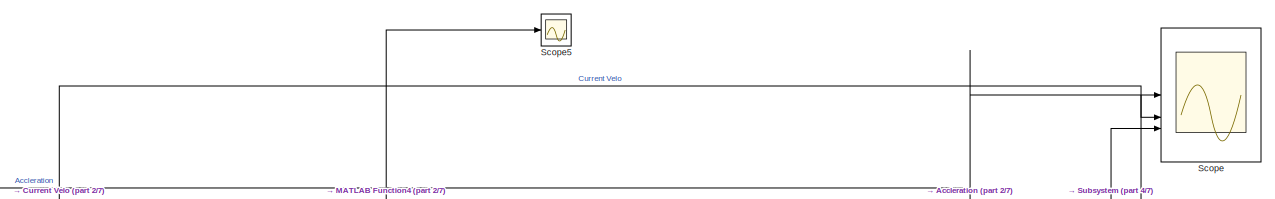
[diagram: root canvas - part 1/7, top right region]
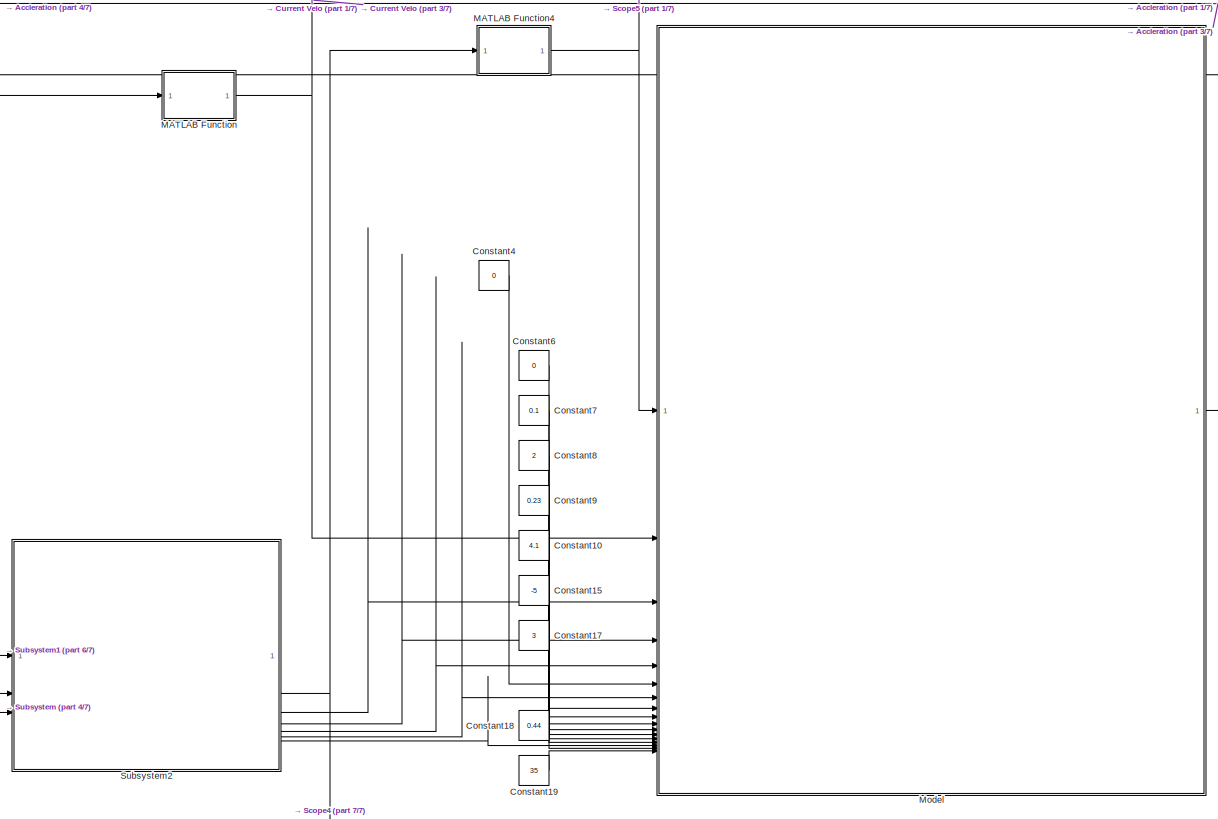
[diagram: root canvas - part 2/7, middle right region]
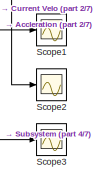
[diagram: root canvas - part 3/7, top right region]
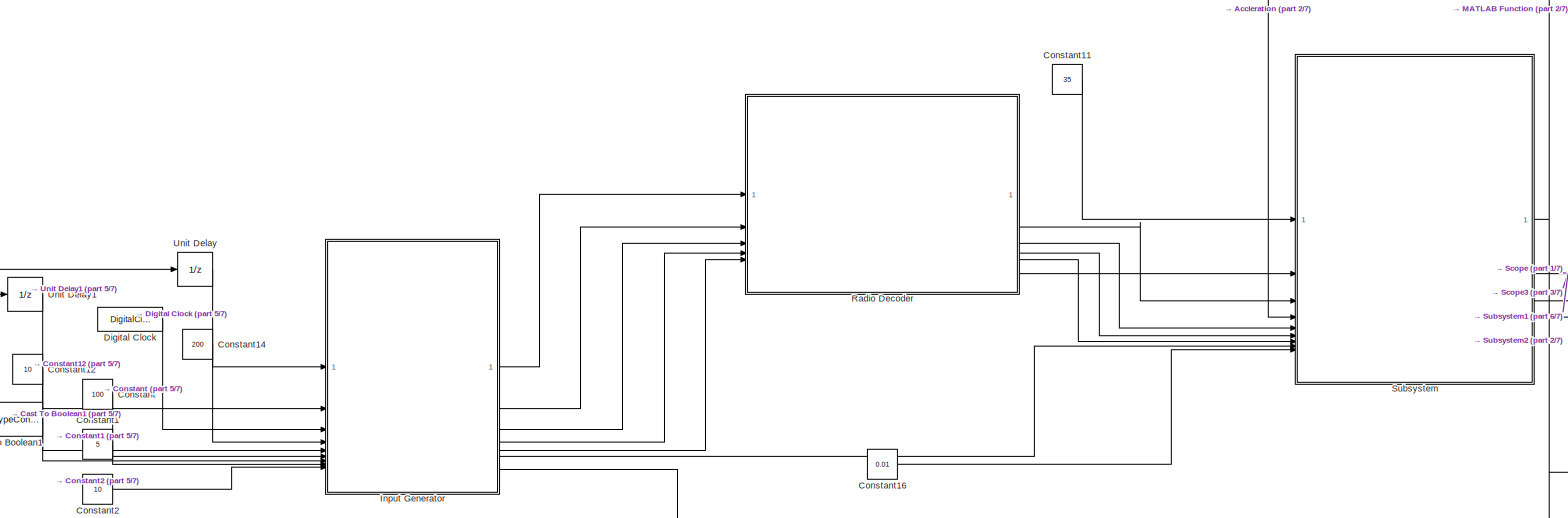
[diagram: root canvas - part 4/7, middle left region]
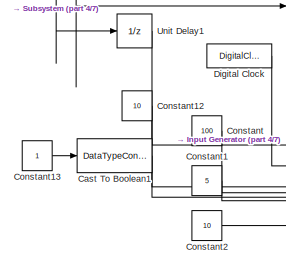
[diagram: root canvas - part 5/7, middle left region]
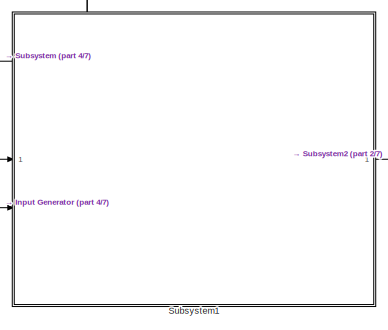
[diagram: root canvas - part 6/7, bottom center region]
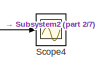
[diagram: root canvas - part 7/7, bottom right region]
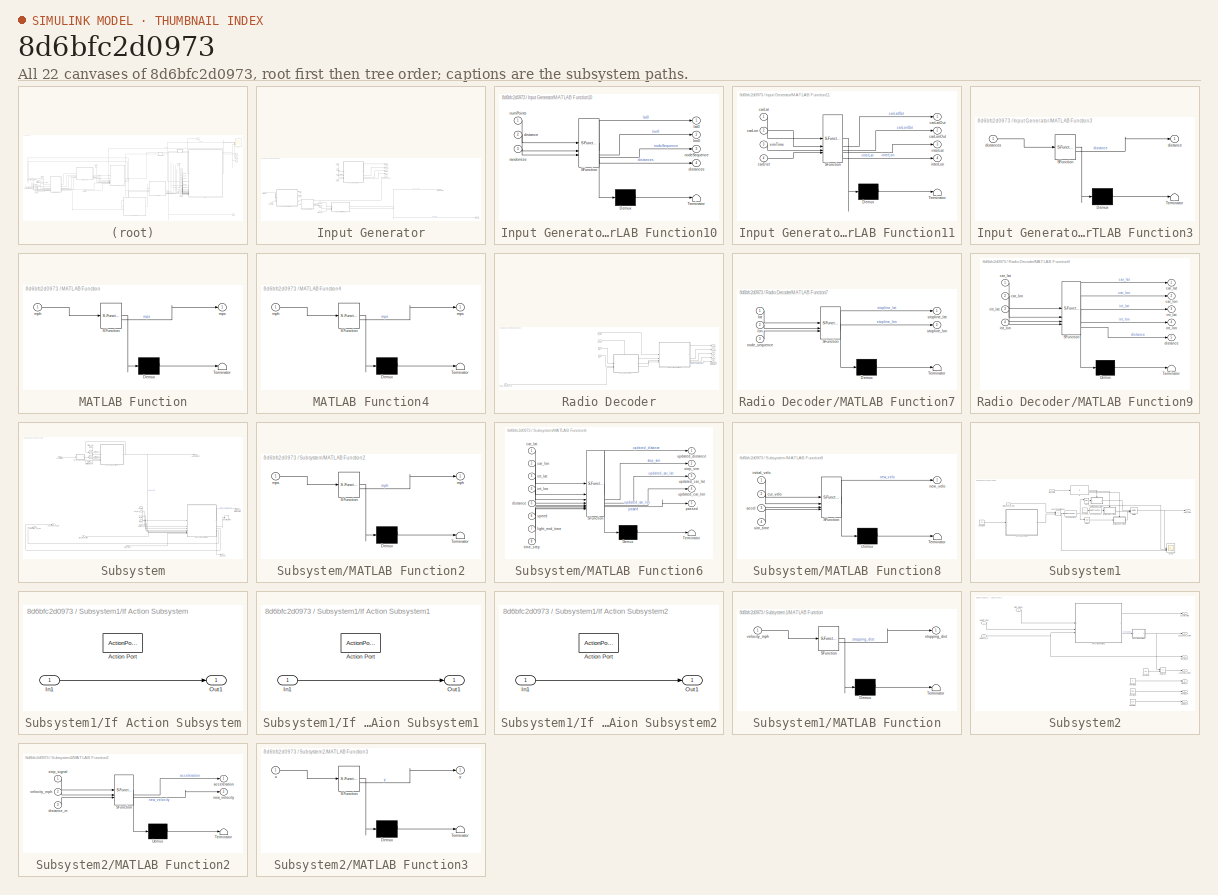
[diagram: thumbnail index - all 22 canvases of the model, root first then tree order]
MODEL slx_8d6bfc2d0973
KIND model
CONFIG AbsTol = auto
CONFIG EnableMultiTasking = off
CONFIG FixedStep = auto
CONFIG MaxStep = auto
CONFIG MinStep = auto
CONFIG RelTol = 1e-3
CONFIG SampleTimeConstraint = Unconstrained
CONFIG SolverName = VariableStepAuto
CONFIG StartTime = 0.0
CONFIG StopTime = 5
BLOCK [DataTypeConversion] Cast To Boolean1
  OutDataTypeStr = boolean
  RndMeth = Floor
  SaturateOnIntegerOverflow = off
BLOCK [Constant] Constant
  Value = 100
BLOCK [Constant] Constant1
  Value = 5
BLOCK [Constant] Constant10
  Value = 4.1
BLOCK [Constant] Constant11
  Value = 35
BLOCK [Constant] Constant12
  Value = 10
BLOCK [Constant] Constant13
BLOCK [Constant] Constant14
  Value = 200
BLOCK [Constant] Constant15
  Value = -5
BLOCK [Constant] Constant16
  Value = 0.01
BLOCK [Constant] Constant17
  Value = 3
BLOCK [Constant] Constant18
  Value = 0.44
BLOCK [Constant] Constant19
  Value = 35
BLOCK [Constant] Constant2
  Value = 10
BLOCK [Constant] Constant4
  Value = 0
BLOCK [Constant] Constant6
  Value = 0
BLOCK [Constant] Constant7
  Value = 0.1
BLOCK [Constant] Constant8
  Value = 2
BLOCK [Constant] Constant9
  Value = 0.23
BLOCK [DigitalClock] Digital Clock
  SampleTime = 0.01
BLOCK [SubSystem] Input Generator
BLOCK [SubSystem] Input Generator/MATLAB Function10
  ErrorFcn = Stateflow.Translate.translate
  PermitHierarchicalResolution = ExplicitOnly
  SFBlockType = MATLAB Function
  TreatAsAtomicUnit = on
BLOCK [Demux] Input Generator/MATLAB Function10/ Demux 
  Outputs = 1
BLOCK [S-Function] Input Generator/MATLAB Function10/ SFunction 
  EnableBusSupport = on
  FunctionName = sf_sfun
  PortCounts = [3 5]
  SFcnIsStateOwnerBlock = off
  SFunctionDeploymentMode = off
  Tag = Stateflow S-Function 12
BLOCK [Terminator] Input Generator/MATLAB Function10/ Terminator 
BLOCK [Inport] Input Generator/MATLAB Function10/distance
  Port = 2
BLOCK [Outport] Input Generator/MATLAB Function10/distances
  Port = 4
BLOCK [Outport] Input Generator/MATLAB Function10/lat0
BLOCK [Outport] Input Generator/MATLAB Function10/lon0
  Port = 2
BLOCK [Outport] Input Generator/MATLAB Function10/nodeSequence
  Port = 3
BLOCK [Inport] Input Generator/MATLAB Function10/numPoints
BLOCK [Inport] Input Generator/MATLAB Function10/randomize
  Port = 3
BLOCK [SubSystem] Input Generator/MATLAB Function11
  ErrorFcn = Stateflow.Translate.translate
  PermitHierarchicalResolution = ExplicitOnly
  SFBlockType = MATLAB Function
  TreatAsAtomicUnit = on
BLOCK [Demux] Input Generator/MATLAB Function11/ Demux 
  Outputs = 1
BLOCK [S-Function] Input Generator/MATLAB Function11/ SFunction 
  EnableBusSupport = on
  FunctionName = sf_sfun
  PortCounts = [4 5]
  SFcnIsStateOwnerBlock = off
  SFunctionDeploymentMode = off
  Tag = Stateflow S-Function 13
BLOCK [Terminator] Input Generator/MATLAB Function11/ Terminator 
BLOCK [Inport] Input Generator/MATLAB Function11/carDist
  Port = 4
BLOCK [Inport] Input Generator/MATLAB Function11/carLat
BLOCK [Outport] Input Generator/MATLAB Function11/carLatOut
BLOCK [Inport] Input Generator/MATLAB Function11/carLon
  Port = 2
BLOCK [Outport] Input Generator/MATLAB Function11/carLonOut
  Port = 2
BLOCK [Outport] Input Generator/MATLAB Function11/interLat
  Port = 3
BLOCK [Outport] Input Generator/MATLAB Function11/interLon
  Port = 4
BLOCK [Inport] Input Generator/MATLAB Function11/simTime
  Port = 3
BLOCK [SubSystem] Input Generator/MATLAB Function3
  ErrorFcn = Stateflow.Translate.translate
  PermitHierarchicalResolution = ExplicitOnly
  SFBlockType = MATLAB Function
  TreatAsAtomicUnit = on
BLOCK [Demux] Input Generator/MATLAB Function3/ Demux 
  Outputs = 1
BLOCK [S-Function] Input Generator/MATLAB Function3/ SFunction 
  EnableBusSupport = on
  FunctionName = sf_sfun
  PortCounts = [1 2]
  SFcnIsStateOwnerBlock = off
  SFunctionDeploymentMode = off
  Tag = Stateflow S-Function 6
BLOCK [Terminator] Input Generator/MATLAB Function3/ Terminator 
BLOCK [Outport] Input Generator/MATLAB Function3/distance
BLOCK [Inport] Input Generator/MATLAB Function3/distances
BLOCK [SubSystem] Input Generator/Subsystem Reference
  ReferencedSubsystem = traffic_light_sim_ryg
BLOCK [Inport] Input Generator/carDist
  Port = 4
BLOCK [Inport] Input Generator/carLat
BLOCK [Outport] Input Generator/carLatOut
BLOCK [Inport] Input Generator/carLon
  Port = 2
BLOCK [Outport] Input Generator/carLonOut
  Port = 2
BLOCK [Inport] Input Generator/distance
  Port = 5
BLOCK [Outport] Input Generator/distance1
  Port = 9
BLOCK [Inport] Input Generator/green_sec
  Port = 9
BLOCK [Outport] Input Generator/interLat
  Port = 3
BLOCK [Outport] Input Generator/interLon
  Port = 4
BLOCK [Outport] Input Generator/lat0
  Port = 7
BLOCK [Outport] Input Generator/light_end_time
  Port = 6
BLOCK [Outport] Input Generator/light_state
  Port = 10
BLOCK [Outport] Input Generator/lon0
  Port = 8
BLOCK [Outport] Input Generator/nodeSequence
  Port = 5
BLOCK [Inport] Input Generator/randomize
  Port = 7
BLOCK [Inport] Input Generator/red_sec
  Port = 6
BLOCK [Inport] Input Generator/simTime
  Port = 3
BLOCK [Inport] Input Generator/yellow_sec
  Port = 8
BLOCK [SubSystem] MATLAB Function
  ErrorFcn = Stateflow.Translate.translate
  PermitHierarchicalResolution = ExplicitOnly
  SFBlockType = MATLAB Function
  TreatAsAtomicUnit = on
BLOCK [Demux] MATLAB Function/ Demux 
  Outputs = 1
BLOCK [S-Function] MATLAB Function/ SFunction 
  EnableBusSupport = on
  FunctionName = sf_sfun
  PortCounts = [1 2]
  SFcnIsStateOwnerBlock = off
  SFunctionDeploymentMode = off
  Tag = Stateflow S-Function 3
BLOCK [Terminator] MATLAB Function/ Terminator 
BLOCK [Inport] MATLAB Function/mph
BLOCK [Outport] MATLAB Function/mps
BLOCK [SubSystem] MATLAB Function4
  ErrorFcn = Stateflow.Translate.translate
  PermitHierarchicalResolution = ExplicitOnly
  SFBlockType = MATLAB Function
  TreatAsAtomicUnit = on
BLOCK [Demux] MATLAB Function4/ Demux 
  Outputs = 1
BLOCK [S-Function] MATLAB Function4/ SFunction 
  EnableBusSupport = on
  FunctionName = sf_sfun
  PortCounts = [1 2]
  SFcnIsStateOwnerBlock = off
  SFunctionDeploymentMode = off
  Tag = Stateflow S-Function 8
BLOCK [Terminator] MATLAB Function4/ Terminator 
BLOCK [Inport] MATLAB Function4/mph
BLOCK [Outport] MATLAB Function4/mps
BLOCK [ModelReference] Model
  ModelNameDialog = ACCMPC.slx
  ModelReferenceVersion = 1.21
BLOCK [SubSystem] Radio Decoder
BLOCK [Outport] Radio Decoder/Distance to intersetion
  Port = 5
BLOCK [SubSystem] Radio Decoder/MATLAB Function7
  ErrorFcn = Stateflow.Translate.translate
  PermitHierarchicalResolution = ExplicitOnly
  SFBlockType = MATLAB Function
  TreatAsAtomicUnit = on
BLOCK [Demux] Radio Decoder/MATLAB Function7/ Demux 
  Outputs = 1
BLOCK [S-Function] Radio Decoder/MATLAB Function7/ SFunction 
  EnableBusSupport = on
  FunctionName = sf_sfun
  PortCounts = [3 3]
  SFcnIsStateOwnerBlock = off
  SFunctionDeploymentMode = off
  Tag = Stateflow S-Function 5
BLOCK [Terminator] Radio Decoder/MATLAB Function7/ Terminator 
BLOCK [Inport] Radio Decoder/MATLAB Function7/lat
BLOCK [Inport] Radio Decoder/MATLAB Function7/lon
  Port = 2
BLOCK [Inport] Radio Decoder/MATLAB Function7/node_sequence
  Port = 3
BLOCK [Outport] Radio Decoder/MATLAB Function7/stopline_lat
BLOCK [Outport] Radio Decoder/MATLAB Function7/stopline_lon
  Port = 2
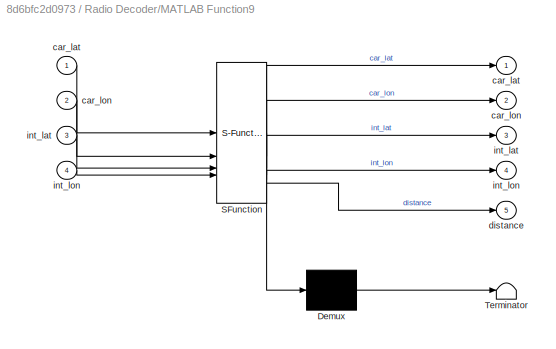
BLOCK [SubSystem] Radio Decoder/MATLAB Function9
  ErrorFcn = Stateflow.Translate.translate
  PermitHierarchicalResolution = ExplicitOnly
  SFBlockType = MATLAB Function
  TreatAsAtomicUnit = on
BLOCK [Demux] Radio Decoder/MATLAB Function9/ Demux 
  Outputs = 1
BLOCK [S-Function] Radio Decoder/MATLAB Function9/ SFunction 
  EnableBusSupport = on
  FunctionName = sf_sfun
  PortCounts = [4 6]
  SFcnIsStateOwnerBlock = off
  SFunctionDeploymentMode = off
  Tag = Stateflow S-Function 11
BLOCK [Terminator] Radio Decoder/MATLAB Function9/ Terminator 
BLOCK [Outport] Radio Decoder/MATLAB Function9/car_lat
BLOCK [Inport] Radio Decoder/MATLAB Function9/car_lat 
BLOCK [Outport] Radio Decoder/MATLAB Function9/car_lon
  Port = 2
BLOCK [Inport] Radio Decoder/MATLAB Function9/car_lon 
  Port = 2
BLOCK [Outport] Radio Decoder/MATLAB Function9/distance
  Port = 5
BLOCK [Outport] Radio Decoder/MATLAB Function9/int_lat
  Port = 3
BLOCK [Inport] Radio Decoder/MATLAB Function9/int_lat 
  Port = 3
BLOCK [Outport] Radio Decoder/MATLAB Function9/int_lon
  Port = 4
BLOCK [Inport] Radio Decoder/MATLAB Function9/int_lon 
  Port = 4
BLOCK [Outport] Radio Decoder/car_lat
BLOCK [Inport] Radio Decoder/car_lat 
BLOCK [Outport] Radio Decoder/car_lon
  Port = 2
BLOCK [Inport] Radio Decoder/car_lon 
  Port = 2
BLOCK [Outport] Radio Decoder/int_lat
  Port = 3
BLOCK [Outport] Radio Decoder/int_lon
  Port = 4
BLOCK [Inport] Radio Decoder/lat
  Port = 3
BLOCK [Inport] Radio Decoder/lon
  Port = 4
BLOCK [Inport] Radio Decoder/node_sequence
  Port = 5
BLOCK [Scope] Scope
  Floating = off
  NumInputPorts = 3
  ScopeSpecificationString = Simulink.scopes.TimeScopeBlockCfg('CurrentConfiguration', extmgr.ConfigurationSet(extmgr.Configuration('Core','General UI',true),extmgr.Configuration('Core','Source UI',true),extmgr.Configuration('Sources','WiredSimulink',true),extmgr.Configuration('Visuals','Time Domain',true,'SerializedDisplays',{struct('MinYLimReal','-16.82624','MaxYLimReal','151.43619','YLabelReal','','MinYLimMag','0.00000','M...<+1446ch>
BLOCK [Scope] Scope1
  Floating = off
  NumInputPorts = 1
  ScopeSpecificationString = Simulink.scopes.TimeScopeBlockCfg('CurrentConfiguration', extmgr.ConfigurationSet(extmgr.Configuration('Core','General UI',true),extmgr.Configuration('Core','Source UI',true),extmgr.Configuration('Sources','WiredSimulink',true,'DataLoggingVariableName','ScopeData1'),extmgr.Configuration('Visuals','Time Domain',true,'SerializedDisplays',{struct('MinYLimReal','-6.00000','MaxYLimReal','4.00000','YLab...<+1459ch>
BLOCK [Scope] Scope2
  Floating = off
  NumInputPorts = 1
  ScopeSpecificationString = Simulink.scopes.TimeScopeBlockCfg('CurrentConfiguration', extmgr.ConfigurationSet(extmgr.Configuration('Core','General UI',true),extmgr.Configuration('Core','Source UI',true),extmgr.Configuration('Sources','WiredSimulink',true,'DataLoggingVariableName','ScopeData2'),extmgr.Configuration('Visuals','Time Domain',true,'SerializedDisplays',{struct('MinYLimReal','-323.88902','MaxYLimReal','313.80912','...<+1474ch>
BLOCK [Scope] Scope3
  Floating = off
  NumInputPorts = 1
  ScopeSpecificationString = Simulink.scopes.TimeScopeBlockCfg('CurrentConfiguration', extmgr.ConfigurationSet(extmgr.Configuration('Core','General UI',true),extmgr.Configuration('Core','Source UI',true),extmgr.Configuration('Sources','WiredSimulink',true,'DataLoggingVariableName','ScopeData3'),extmgr.Configuration('Visuals','Time Domain',true,'SerializedDisplays',{struct('MinYLimReal','38.0753','MaxYLimReal','296.03843','YLa...<+1488ch>
BLOCK [Scope] Scope4
  Floating = off
  NumInputPorts = 1
  ScopeSpecificationString = Simulink.scopes.TimeScopeBlockCfg('CurrentConfiguration', extmgr.ConfigurationSet(extmgr.Configuration('Core','General UI',true),extmgr.Configuration('Core','Source UI',true),extmgr.Configuration('Sources','WiredSimulink',true,'DataLoggingVariableName','ScopeData4'),extmgr.Configuration('Visuals','Time Domain',true,'SerializedDisplays',{struct('MinYLimReal','25.00000','MaxYLimReal','45.00000','YLa...<+1470ch>
BLOCK [Scope] Scope5
  Floating = off
  NumInputPorts = 1
  ScopeSpecificationString = Simulink.scopes.TimeScopeBlockCfg('CurrentConfiguration', extmgr.ConfigurationSet(extmgr.Configuration('Core','General UI',true),extmgr.Configuration('Core','Source UI',true),extmgr.Configuration('Sources','WiredSimulink',true,'DataLoggingVariableName','ScopeData7'),extmgr.Configuration('Visuals','Time Domain',true,'SerializedDisplays',{struct('MinYLimReal','5.6464','MaxYLimReal','25.6464','YLabel...<+1458ch>
BLOCK [SubSystem] Subsystem
BLOCK [Inport] Subsystem/Accleration
  Port = 4
BLOCK [DigitalClock] Subsystem/Digital Clock1
  SampleTime = 0.01
BLOCK [Outport] Subsystem/Distance to Intersection
  Port = 2
BLOCK [SubSystem] Subsystem/MATLAB Function2
  ErrorFcn = Stateflow.Translate.translate
  PermitHierarchicalResolution = ExplicitOnly
  SFBlockType = MATLAB Function
  TreatAsAtomicUnit = on
BLOCK [Demux] Subsystem/MATLAB Function2/ Demux 
  Outputs = 1
BLOCK [S-Function] Subsystem/MATLAB Function2/ SFunction 
  EnableBusSupport = on
  FunctionName = sf_sfun
  PortCounts = [1 2]
  SFcnIsStateOwnerBlock = off
  SFunctionDeploymentMode = off
  Tag = Stateflow S-Function 7
BLOCK [Terminator] Subsystem/MATLAB Function2/ Terminator 
BLOCK [Outport] Subsystem/MATLAB Function2/mph
BLOCK [Inport] Subsystem/MATLAB Function2/mps
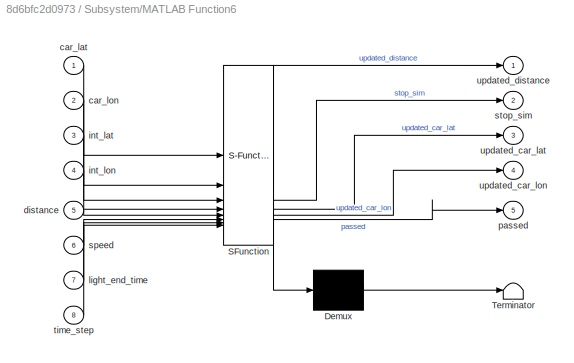
BLOCK [SubSystem] Subsystem/MATLAB Function6
  ErrorFcn = Stateflow.Translate.translate
  PermitHierarchicalResolution = ExplicitOnly
  SFBlockType = MATLAB Function
  TreatAsAtomicUnit = on
BLOCK [Demux] Subsystem/MATLAB Function6/ Demux 
  Outputs = 1
BLOCK [S-Function] Subsystem/MATLAB Function6/ SFunction 
  EnableBusSupport = on
  FunctionName = sf_sfun
  PortCounts = [8 6]
  SFcnIsStateOwnerBlock = off
  SFunctionDeploymentMode = off
  Tag = Stateflow S-Function 1
BLOCK [Terminator] Subsystem/MATLAB Function6/ Terminator 
BLOCK [Inport] Subsystem/MATLAB Function6/car_lat
BLOCK [Inport] Subsystem/MATLAB Function6/car_lon
  Port = 2
BLOCK [Inport] Subsystem/MATLAB Function6/distance
  Port = 5
BLOCK [Inport] Subsystem/MATLAB Function6/int_lat
  Port = 3
BLOCK [Inport] Subsystem/MATLAB Function6/int_lon
  Port = 4
BLOCK [Inport] Subsystem/MATLAB Function6/light_end_time
  Port = 7
BLOCK [Outport] Subsystem/MATLAB Function6/passed
  Port = 5
BLOCK [Inport] Subsystem/MATLAB Function6/speed
  Port = 6
BLOCK [Outport] Subsystem/MATLAB Function6/stop_sim
  Port = 2
BLOCK [Inport] Subsystem/MATLAB Function6/time_step
  Port = 8
BLOCK [Outport] Subsystem/MATLAB Function6/updated_car_lat
  Port = 3
BLOCK [Outport] Subsystem/MATLAB Function6/updated_car_lon
  Port = 4
BLOCK [Outport] Subsystem/MATLAB Function6/updated_distance
BLOCK [SubSystem] Subsystem/MATLAB Function8
  ErrorFcn = Stateflow.Translate.translate
  PermitHierarchicalResolution = ExplicitOnly
  SFBlockType = MATLAB Function
  TreatAsAtomicUnit = on
BLOCK [Demux] Subsystem/MATLAB Function8/ Demux 
  Outputs = 1
BLOCK [S-Function] Subsystem/MATLAB Function8/ SFunction 
  EnableBusSupport = on
  FunctionName = sf_sfun
  PortCounts = [4 2]
  SFcnIsStateOwnerBlock = off
  SFunctionDeploymentMode = off
  Tag = Stateflow S-Function 10
BLOCK [Terminator] Subsystem/MATLAB Function8/ Terminator 
BLOCK [Inport] Subsystem/MATLAB Function8/accel
  Port = 3
BLOCK [Inport] Subsystem/MATLAB Function8/cur_velo
  Port = 2
BLOCK [Inport] Subsystem/MATLAB Function8/initial_velo
BLOCK [Outport] Subsystem/MATLAB Function8/new_velo
BLOCK [Inport] Subsystem/MATLAB Function8/sim_time
  Port = 4
BLOCK [Outport] Subsystem/NewVelocity
BLOCK [Stop] Subsystem/Stop Simulation
BLOCK [UnitDelay] Subsystem/Unit Delay2
  HasFrameUpgradeWarning = on
  SampleTime = -1
BLOCK [UnitDelay] Subsystem/Unit Delay3
  HasFrameUpgradeWarning = on
  SampleTime = -1
BLOCK [Inport] Subsystem/car_lat
  Port = 2
BLOCK [Inport] Subsystem/car_lon
  Port = 3
BLOCK [Inport] Subsystem/distance
  Port = 7
BLOCK [Inport] Subsystem/initial_velo
BLOCK [Inport] Subsystem/int_lat
  Port = 5
BLOCK [Inport] Subsystem/int_lon
  Port = 6
BLOCK [Inport] Subsystem/light_end_time
  Port = 8
BLOCK [Outport] Subsystem/passed
  Port = 5
BLOCK [Inport] Subsystem/time_step
  Port = 9
BLOCK [Outport] Subsystem/updated_car_lat
  Port = 3
BLOCK [Outport] Subsystem/updated_car_lon
  Port = 4
BLOCK [SubSystem] Subsystem1
BLOCK [DataTypeConversion] Subsystem1/Cast To Boolean
  OutDataTypeStr = boolean
  RndMeth = Floor
  SaturateOnIntegerOverflow = off
BLOCK [DataTypeConversion] Subsystem1/Cast To Boolean1
  OutDataTypeStr = boolean
  RndMeth = Floor
  SaturateOnIntegerOverflow = off
BLOCK [Constant] Subsystem1/Constant
  Value = 20
BLOCK [Constant] Subsystem1/Constant1
  Value = 0
BLOCK [If] Subsystem1/If
  ElseIfExpressions = u1 == 6
  IfExpression = u1 == 3
BLOCK [SubSystem] Subsystem1/If Action Subsystem
  TreatAsAtomicUnit = on
BLOCK [ActionPort] Subsystem1/If Action Subsystem/Action Port
  ActionPortLabel = if(u1 == 3)
BLOCK [Inport] Subsystem1/If Action Subsystem/In1
BLOCK [Outport] Subsystem1/If Action Subsystem/Out1
BLOCK [SubSystem] Subsystem1/If Action Subsystem1
  TreatAsAtomicUnit = on
BLOCK [ActionPort] Subsystem1/If Action Subsystem1/Action Port
  ActionPortLabel = elseif(u1 == 6)
BLOCK [Inport] Subsystem1/If Action Subsystem1/In1
BLOCK [Outport] Subsystem1/If Action Subsystem1/Out1
BLOCK [SubSystem] Subsystem1/If Action Subsystem2
  TreatAsAtomicUnit = on
BLOCK [ActionPort] Subsystem1/If Action Subsystem2/Action Port
  ActionPortLabel = else
BLOCK [Inport] Subsystem1/If Action Subsystem2/In1
BLOCK [Outport] Subsystem1/If Action Subsystem2/Out1
BLOCK [RelationalOperator] Subsystem1/LessThanOrEqual
  InputSameDT = off
  Operator = <=
  OutDataTypeStr = boolean
  RndMeth = Simplest
BLOCK [SubSystem] Subsystem1/MATLAB Function
  ErrorFcn = Stateflow.Translate.translate
  PermitHierarchicalResolution = ExplicitOnly
  SFBlockType = MATLAB Function
  TreatAsAtomicUnit = on
BLOCK [Demux] Subsystem1/MATLAB Function/ Demux 
  Outputs = 1
BLOCK [S-Function] Subsystem1/MATLAB Function/ SFunction 
  EnableBusSupport = on
  FunctionName = sf_sfun
  PortCounts = [1 2]
  SFcnIsStateOwnerBlock = off
  SFunctionDeploymentMode = off
  Tag = Stateflow S-Function 14
BLOCK [Terminator] Subsystem1/MATLAB Function/ Terminator 
BLOCK [Outport] Subsystem1/MATLAB Function/stopping_dist
BLOCK [Inport] Subsystem1/MATLAB Function/velocity_mph
BLOCK [Merge] Subsystem1/Merge
  Inputs = 3
BLOCK [Logic] Subsystem1/NOT
  AllPortsSameDT = off
  IconShape = distinctive
  Operator = NOT
  OutDataTypeStr = boolean
BLOCK [Logic] Subsystem1/NOT1
  AllPortsSameDT = off
  IconShape = distinctive
  Operator = NOT
  OutDataTypeStr = boolean
BLOCK [Scope] Subsystem1/Scope
  Floating = off
  NumInputPorts = 3
  ScopeSpecificationString = Simulink.scopes.TimeScopeBlockCfg('CurrentConfiguration', extmgr.ConfigurationSet(extmgr.Configuration('Core','General UI',true),extmgr.Configuration('Core','Source UI',true),extmgr.Configuration('Sources','WiredSimulink',true,'DataLoggingVariableName','ScopeData5'),extmgr.Configuration('Visuals','Time Domain',true,'SerializedDisplays',{struct('MinYLimReal','-0.125','MaxYLimReal','1.125','YLabelRe...<+1469ch>
BLOCK [Inport] Subsystem1/distance_to_stop
BLOCK [Inport] Subsystem1/light_state
  Port = 2
BLOCK [Outport] Subsystem1/stop_bool
BLOCK [SubSystem] Subsystem2
BLOCK [Constant] Subsystem2/Constant
  Value = 100
BLOCK [Constant] Subsystem2/Constant1
  Value = 150
BLOCK [Constant] Subsystem2/Constant2
  Value = 0
BLOCK [Constant] Subsystem2/Constant3
  Value = 0.5
BLOCK [Outport] Subsystem2/LeadVelo_kmph
  Port = 4
BLOCK [SubSystem] Subsystem2/MATLAB Function2
  ErrorFcn = Stateflow.Translate.translate
  PermitHierarchicalResolution = ExplicitOnly
  SFBlockType = MATLAB Function
  TreatAsAtomicUnit = on
BLOCK [Demux] Subsystem2/MATLAB Function2/ Demux 
  Outputs = 1
BLOCK [S-Function] Subsystem2/MATLAB Function2/ SFunction 
  EnableBusSupport = on
  FunctionName = sf_sfun
  PortCounts = [3 3]
  SFcnIsStateOwnerBlock = off
  SFunctionDeploymentMode = off
  Tag = Stateflow S-Function 16
BLOCK [Terminator] Subsystem2/MATLAB Function2/ Terminator 
BLOCK [Outport] Subsystem2/MATLAB Function2/acceleration
BLOCK [Inport] Subsystem2/MATLAB Function2/distance_m
  Port = 3
BLOCK [Outport] Subsystem2/MATLAB Function2/new_velocity
  Port = 2
BLOCK [Inport] Subsystem2/MATLAB Function2/stop_signal
BLOCK [Inport] Subsystem2/MATLAB Function2/velocity_mph
  Port = 2
BLOCK [SubSystem] Subsystem2/MATLAB Function3
  ErrorFcn = Stateflow.Translate.translate
  PermitHierarchicalResolution = ExplicitOnly
  SFBlockType = MATLAB Function
  TreatAsAtomicUnit = on
BLOCK [Demux] Subsystem2/MATLAB Function3/ Demux 
  Outputs = 1
BLOCK [S-Function] Subsystem2/MATLAB Function3/ SFunction 
  EnableBusSupport = on
  FunctionName = sf_sfun
  PortCounts = [1 2]
  SFcnIsStateOwnerBlock = off
  SFunctionDeploymentMode = off
  Tag = Stateflow S-Function 4
BLOCK [Terminator] Subsystem2/MATLAB Function3/ Terminator 
BLOCK [Inport] Subsystem2/MATLAB Function3/u
BLOCK [Outport] Subsystem2/MATLAB Function3/y
BLOCK [Outport] Subsystem2/MaxDist_m
  Port = 6
BLOCK [Outport] Subsystem2/MinDist_m
  Port = 5
BLOCK [Outport] Subsystem2/Rel_Dist_m
  Port = 3
BLOCK [Outport] Subsystem2/SafeDist_m
  Port = 7
BLOCK [Sum] Subsystem2/Subtract
  IconShape = rectangular
  Inputs = +-
BLOCK [Outport] Subsystem2/acceleration
BLOCK [Inport] Subsystem2/distance_m
  Port = 3
BLOCK [Outport] Subsystem2/set_speed_kmph
  Port = 2
BLOCK [Inport] Subsystem2/stop_signal
BLOCK [Inport] Subsystem2/velocity_mph
  Port = 2
BLOCK [UnitDelay] Unit Delay
  HasFrameUpgradeWarning = on
  SampleTime = -1
BLOCK [UnitDelay] Unit Delay1
  HasFrameUpgradeWarning = on
  SampleTime = -1
LINE Cast To Boolean1:1 -> Input Generator:7
LINE Constant10:1 -> Model:12
LINE Constant11:1 -> Subsystem:1
LINE Constant12:1 -> Input Generator:5
LINE Constant13:1 -> Cast To Boolean1:1
LINE Constant14:1 -> Input Generator:4
LINE Constant15:1 -> Model:13
LINE Constant16:1 -> Subsystem:9
LINE Constant17:1 -> Model:14
LINE Constant18:1 -> Model:16
LINE Constant19:1 -> Model:17
LINE Constant1:1 -> Input Generator:8
LINE Constant2:1 -> Input Generator:9
LINE Constant4:1 -> Model:6
LINE Constant6:1 -> Model:8
LINE Constant7:1 -> Model:9
LINE Constant8:1 -> Model:10
LINE Constant9:1 -> Model:11
LINE Constant:1 -> Input Generator:6
LINE Digital Clock:1 -> Input Generator:3
LINE Input Generator/MATLAB Function10:1 -> Input Generator/lat0:1
LINE Input Generator/MATLAB Function10:2 -> Input Generator/lon0:1
LINE Input Generator/MATLAB Function10:3 -> Input Generator/nodeSequence:1
LINE Input Generator/MATLAB Function10:4 -> Input Generator/MATLAB Function3:1
LINE Input Generator/MATLAB Function11:1 -> Input Generator/carLatOut:1
LINE Input Generator/MATLAB Function11:2 -> Input Generator/carLonOut:1
LINE Input Generator/MATLAB Function11:3 -> Input Generator/interLat:1
LINE Input Generator/MATLAB Function11:4 -> Input Generator/interLon:1
LINE Input Generator/MATLAB Function3:1 -> Input Generator/distance1:1
LINE Input Generator/Subsystem Reference:1 -> Input Generator/light_state:1
LINE Input Generator/Subsystem Reference:2 -> Input Generator/light_end_time:1
LINE Input Generator/carDist:1 -> Input Generator/MATLAB Function11:4
LINE Input Generator/carLat:1 -> Input Generator/MATLAB Function11:1
LINE Input Generator/carLon:1 -> Input Generator/MATLAB Function11:2
NET Input Generator/distance:1 -> Input Generator/MATLAB Function10:1, Input Generator/MATLAB Function10:2
LINE Input Generator/green_sec:1 -> Input Generator/Subsystem Reference:3
LINE Input Generator/randomize:1 -> Input Generator/MATLAB Function10:3
LINE Input Generator/red_sec:1 -> Input Generator/Subsystem Reference:1
LINE Input Generator/simTime:1 -> Input Generator/MATLAB Function11:3
LINE Input Generator/yellow_sec:1 -> Input Generator/Subsystem Reference:2
LINE Input Generator:1 -> Radio Decoder:1
LINE Input Generator:10 -> Subsystem1:2
LINE Input Generator:2 -> Radio Decoder:2
LINE Input Generator:3 -> Radio Decoder:3
LINE Input Generator:4 -> Radio Decoder:4
LINE Input Generator:5 -> Radio Decoder:5
LINE Input Generator:6 -> Subsystem:8
NET MATLAB Function4:1 -> Model:1, Scope5:1
NET MATLAB Function:1 -> Model:2, Scope2:1, Scope:2
NET Model:1 -> Scope1:1, Scope:1, Subsystem:4
LINE Radio Decoder/MATLAB Function7:1 -> Radio Decoder/MATLAB Function9:3
LINE Radio Decoder/MATLAB Function7:2 -> Radio Decoder/MATLAB Function9:4
LINE Radio Decoder/MATLAB Function9:1 -> Radio Decoder/car_lat:1
LINE Radio Decoder/MATLAB Function9:2 -> Radio Decoder/car_lon:1
LINE Radio Decoder/MATLAB Function9:3 -> Radio Decoder/int_lat:1
LINE Radio Decoder/MATLAB Function9:4 -> Radio Decoder/int_lon:1
LINE Radio Decoder/MATLAB Function9:5 -> Radio Decoder/Distance to intersetion:1
LINE Radio Decoder/car_lat :1 -> Radio Decoder/MATLAB Function9:1
LINE Radio Decoder/car_lon :1 -> Radio Decoder/MATLAB Function9:2
LINE Radio Decoder/lat:1 -> Radio Decoder/MATLAB Function7:1
LINE Radio Decoder/lon:1 -> Radio Decoder/MATLAB Function7:2
LINE Radio Decoder/node_sequence:1 -> Radio Decoder/MATLAB Function7:3
LINE Radio Decoder:1 -> Subsystem:2
LINE Radio Decoder:2 -> Subsystem:3
LINE Radio Decoder:3 -> Subsystem:5
LINE Radio Decoder:4 -> Subsystem:6
LINE Radio Decoder:5 -> Subsystem:7
LINE Subsystem/Accleration:1 -> Subsystem/MATLAB Function2:1
LINE Subsystem/Digital Clock1:1 -> Subsystem/MATLAB Function8:4
LINE Subsystem/MATLAB Function2:1 -> Subsystem/Unit Delay3:1
LINE Subsystem/MATLAB Function6:1 -> Subsystem/Distance to Intersection:1
LINE Subsystem/MATLAB Function6:2 -> Subsystem/Stop Simulation:1
LINE Subsystem/MATLAB Function6:3 -> Subsystem/updated_car_lat:1
LINE Subsystem/MATLAB Function6:4 -> Subsystem/updated_car_lon:1
LINE Subsystem/MATLAB Function6:5 -> Subsystem/passed:1
NET Subsystem/MATLAB Function8:1 -> Subsystem/MATLAB Function6:6, Subsystem/NewVelocity:1, Subsystem/Unit Delay2:1
LINE Subsystem/Unit Delay2:1 -> Subsystem/MATLAB Function8:2
LINE Subsystem/Unit Delay3:1 -> Subsystem/MATLAB Function8:3
LINE Subsystem/car_lat:1 -> Subsystem/MATLAB Function6:1
LINE Subsystem/car_lon:1 -> Subsystem/MATLAB Function6:2
LINE Subsystem/distance:1 -> Subsystem/MATLAB Function6:5
LINE Subsystem/initial_velo:1 -> Subsystem/MATLAB Function8:1
LINE Subsystem/int_lat:1 -> Subsystem/MATLAB Function6:3
LINE Subsystem/int_lon:1 -> Subsystem/MATLAB Function6:4
LINE Subsystem/light_end_time:1 -> Subsystem/MATLAB Function6:7
LINE Subsystem/time_step:1 -> Subsystem/MATLAB Function6:8
LINE Subsystem1/Cast To Boolean1:1 -> Subsystem1/If Action Subsystem1:1
NET Subsystem1/Cast To Boolean:1 -> Subsystem1/NOT1:1, Subsystem1/NOT:1
LINE Subsystem1/Constant1:1 -> Subsystem1/Cast To Boolean1:1
LINE Subsystem1/Constant:1 -> Subsystem1/MATLAB Function:1
LINE Subsystem1/If Action Subsystem/In1:1 -> Subsystem1/If Action Subsystem/Out1:1
LINE Subsystem1/If Action Subsystem1/In1:1 -> Subsystem1/If Action Subsystem1/Out1:1
LINE Subsystem1/If Action Subsystem1:1 -> Subsystem1/Merge:2
LINE Subsystem1/If Action Subsystem2/In1:1 -> Subsystem1/If Action Subsystem2/Out1:1
LINE Subsystem1/If Action Subsystem2:1 -> Subsystem1/Merge:3
LINE Subsystem1/If Action Subsystem:1 -> Subsystem1/Merge:1
LINE Subsystem1/If:1 -> Subsystem1/If Action Subsystem:ifaction
LINE Subsystem1/If:2 -> Subsystem1/If Action Subsystem1:ifaction
LINE Subsystem1/If:3 -> Subsystem1/If Action Subsystem2:ifaction
NET Subsystem1/LessThanOrEqual:1 -> Subsystem1/Cast To Boolean:1, Subsystem1/Scope:3
LINE Subsystem1/MATLAB Function:1 -> Subsystem1/LessThanOrEqual:2
NET Subsystem1/Merge:1 -> Subsystem1/Scope:1, Subsystem1/stop_bool:1
LINE Subsystem1/NOT1:1 -> Subsystem1/If Action Subsystem2:1
NET Subsystem1/NOT:1 -> Subsystem1/If Action Subsystem:1, Subsystem1/Scope:2
LINE Subsystem1/distance_to_stop:1 -> Subsystem1/LessThanOrEqual:1
LINE Subsystem1/light_state:1 -> Subsystem1/If:1
LINE Subsystem1:1 -> Subsystem2:1
LINE Subsystem2/Constant1:1 -> Subsystem2/MaxDist_m:1
LINE Subsystem2/Constant2:1 -> Subsystem2/MinDist_m:1
LINE Subsystem2/Constant3:1 -> Subsystem2/Subtract:2
LINE Subsystem2/Constant:1 -> Subsystem2/SafeDist_m:1
LINE Subsystem2/MATLAB Function2:1 -> Subsystem2/acceleration:1
LINE Subsystem2/MATLAB Function2:2 -> Subsystem2/MATLAB Function3:1
NET Subsystem2/MATLAB Function3:1 -> Subsystem2/Subtract:1, Subsystem2/set_speed_kmph:1
LINE Subsystem2/Subtract:1 -> Subsystem2/LeadVelo_kmph:1
NET Subsystem2/distance_m:1 -> Subsystem2/MATLAB Function2:3, Subsystem2/Rel_Dist_m:1
LINE Subsystem2/stop_signal:1 -> Subsystem2/MATLAB Function2:1
LINE Subsystem2/velocity_mph:1 -> Subsystem2/MATLAB Function2:2
NET Subsystem2:2 -> MATLAB Function4:1, Scope4:1
LINE Subsystem2:3 -> Model:3
LINE Subsystem2:4 -> Model:4
LINE Subsystem2:5 -> Model:5
LINE Subsystem2:6 -> Model:7
LINE Subsystem2:7 -> Model:15
NET Subsystem:1 -> MATLAB Function:1, Subsystem2:2
NET Subsystem:2 -> Scope3:1, Scope:3, Subsystem1:1, Subsystem2:3
LINE Subsystem:3 -> Unit Delay:1
LINE Subsystem:4 -> Unit Delay1:1
LINE Unit Delay1:1 -> Input Generator:2
LINE Unit Delay:1 -> Input Generator:1
note: NET lines group one-source signal fan-out (src -> all destinations, sorted); 1:1 wires keep LINE
CHART Input Generator/MATLAB Function10 states=1 transitions=1
  STATE_LABEL 'eML_blk_kernel()'
  STATE_LABEL 'SCRIPT:\nfunction [lat0, lon0, nodeSequence, distances] = generateNodeXY(numPoints, distance, randomize)\n    % GENERATENODEXY Generates a sequence of node points for a path.\n    % This function initializes once at the start of the Simulink simulation\n    % and retains the same values throughout the simulation.\n    %\n    % INPUTS:\n    %   numPoints  - Number of points in the path (integer, max 63)\n ...<+1868ch>'
CHART Input Generator/MATLAB Function11 states=1 transitions=1
  STATE_LABEL 'eML_blk_kernel()'
  STATE_LABEL "SCRIPT:\nfunction [carLatOut, carLonOut, interLat, interLon] = car_position_update(carLat, carLon, simTime, carDist)\n    % Define Earth's radius in meters\n    R = 6371000;\n    \n    % Persistent variables to store intersection coordinates\n    persistent interLatStored interLonStored;\n    \n    % Generate random intersection coordinates only once at simulation start\n    if isempty(interLatStored) || i...<+1017ch>"
CHART Subsystem1/MATLAB Function states=1 transitions=1
  STATE_LABEL 'eML_blk_kernel()'
  STATE_LABEL "SCRIPT:\nfunction stopping_dist = stopping_distance(velocity_mph)\n    % Stopping Distance Calculation for Simulink\n    % \n    % velocity_mph: Velocity in miles per hour (0 to 35 mph)\n    % stopping_dist: Stopping distance in meters\n    %\n    % Ensure velocity is within the valid range\n    if velocity_mph < 0 || velocity_mph > 35\n        error('Velocity must be between 0 and 35 mph.');\n    end\n    \n...<+317ch>"
CHART Subsystem2/MATLAB Function2 states=1 transitions=1
  STATE_LABEL 'eML_blk_kernel()'
  STATE_LABEL 'SCRIPT:\nfunction [acceleration, new_velocity] = calculate_acceleration(stop_signal, velocity_mph, distance_m)\n    % Calculate required acceleration to stop at a given distance\n    %\n    % stop_signal: Boolean (0 = go, 1 = stop)\n    % velocity_mph: Current velocity in miles per hour (0 to 35 mph)\n    % distance_m: Distance available to stop in meters\n    % acceleration: Required acceleration in m/s...<+955ch>'
CHART Subsystem/MATLAB Function6 states=1 transitions=1
  STATE_LABEL 'eML_blk_kernel()'
  STATE_LABEL 'SCRIPT:\nfunction [updated_distance, stop_sim, updated_car_lat, updated_car_lon, passed] = update_distance_to_intersection(car_lat, car_lon, int_lat, int_lon, distance, speed, light_end_time, time_step)\n    % Convert speed from miles per hour to meters per second\n    speed_in_meters = speed / 2.237; \n    \n    % Calculate the change in distance traveled by the car\n    distance_traveled = speed_in_me...<+931ch>'
CHART MATLAB Function states=1 transitions=1
  STATE_LABEL 'eML_blk_kernel()'
  STATE_LABEL 'SCRIPT:\nfunction mps = mph_to_mps(mph)\n%MPH_TO_MPS Converts speed from miles per hour to meters per second\n%   Input:\n%       mph - Speed in miles per hour\n%   Output:\n%       mps - Speed in meters per second\n\n    % Conversion factor (1 mph = 0.44704 mps)\n    conversion_factor = 0.44704;\n    \n    % Convert mph to mps\n    mps = mph * conversion_factor;\nend\n'
CHART Subsystem2/MATLAB Function3 states=1 transitions=1
  STATE_LABEL 'eML_blk_kernel()'
  STATE_LABEL 'SCRIPT:\nfunction y = fcn(u)\n    if u == 0\n        y = 35;\n    else\n        y = 0;\n    end\nend\n\n'
CHART Radio Decoder/MATLAB Function7 states=1 transitions=1
  STATE_LABEL 'eML_blk_kernel()'
  STATE_LABEL "SCRIPT:\nfunction [stopline_lat, stopline_lon] = calculate_stopline_from_sequence(lat, lon, node_sequence)\n    x_offset = 0;\n    y_offset = 0;\n\n    for i = 2:3\n        x = node_sequence(i, 1);\n        y = node_sequence(i, 2);\n\n        % Sum the distances in both directions\n        x_offset = x_offset + x;\n        y_offset = y_offset + y;\n    end\n\n    % Earth's radius in meters\n    R = 6378137;  \n\n ...<+453ch>"
CHART Input Generator/MATLAB Function3 states=1 transitions=1
  STATE_LABEL 'eML_blk_kernel()'
  STATE_LABEL 'SCRIPT:\nfunction distance = fold_sum_vector(distances)\n\n    distance = sum(distances);\nend\n'
CHART Subsystem/MATLAB Function2 states=1 transitions=1
  STATE_LABEL 'eML_blk_kernel()'
  STATE_LABEL 'SCRIPT:\nfunction mph = mps_to_mph(mps)\n%MPS_TO_MPH Converts speed from meters per second to miles per hour\n%   Input:\n%       mps - Speed in meters per second\n%   Output:\n%       mph - Speed in miles per hour\n\n    % Conversion factor (1 mps = 2.23694 mph)\n    conversion_factor = 2.23694;\n    \n    % Convert mps to mph\n    mph = mps * conversion_factor;\nend'
CHART MATLAB Function4 states=1 transitions=1
  STATE_LABEL 'eML_blk_kernel()'
  STATE_LABEL 'SCRIPT:\nfunction mps = mph_to_mps(mph)\n%MPH_TO_MPS Converts speed from miles per hour to meters per second\n%   Input:\n%       mph - Speed in miles per hour\n%   Output:\n%       mps - Speed in meters per second\n\n    % Conversion factor (1 mph = 0.44704 mps)\n    conversion_factor = 0.44704;\n    \n    % Convert mph to mps\n    mps = mph * conversion_factor;\nend\n'
CHART Subsystem/MATLAB Function8 states=1 transitions=1
  STATE_LABEL 'eML_blk_kernel()'
  STATE_LABEL 'SCRIPT:\nfunction new_velo = update_velocity(initial_velo, cur_velo, accel, sim_time)\n    if sim_time < 0.01\n        cur_velo = initial_velo;\n    end\n    new_velo = cur_velo + accel;\nend'
CHART Radio Decoder/MATLAB Function9 states=1 transitions=1
  STATE_LABEL 'eML_blk_kernel()'
  STATE_LABEL "SCRIPT:\nfunction [car_lat, car_lon, int_lat, int_lon, distance] = haversine_distance(car_lat, car_lon, int_lat, int_lon)\n    % haversine_distance calculates the distance between two points\n    % on the Earth's surface given their latitude and longitude in degrees.\n    % The result is in meters.\n\n    % Radius of the Earth in meters\n    R = 6371000; \n    \n    % Convert latitude and longitude from de...<+568ch>"
CHART  states=0 transitions=0
CHART  states=0 transitions=0
CHART  states=0 transitions=0
CHART  states=0 transitions=0
CHART  states=0 transitions=0
CHART  states=0 transitions=0
CHART  states=0 transitions=0
CHART  states=0 transitions=0
CHART  states=0 transitions=0
CHART  states=0 transitions=0
CHART  states=0 transitions=0
CHART  states=0 transitions=0
CHART  states=0 transitions=0
